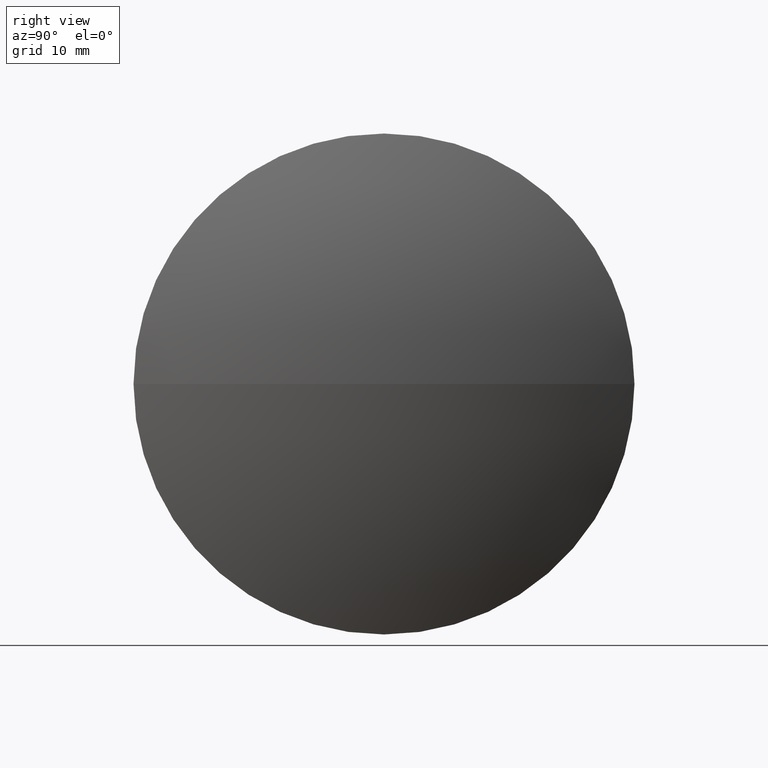
[diagram: clean part render]
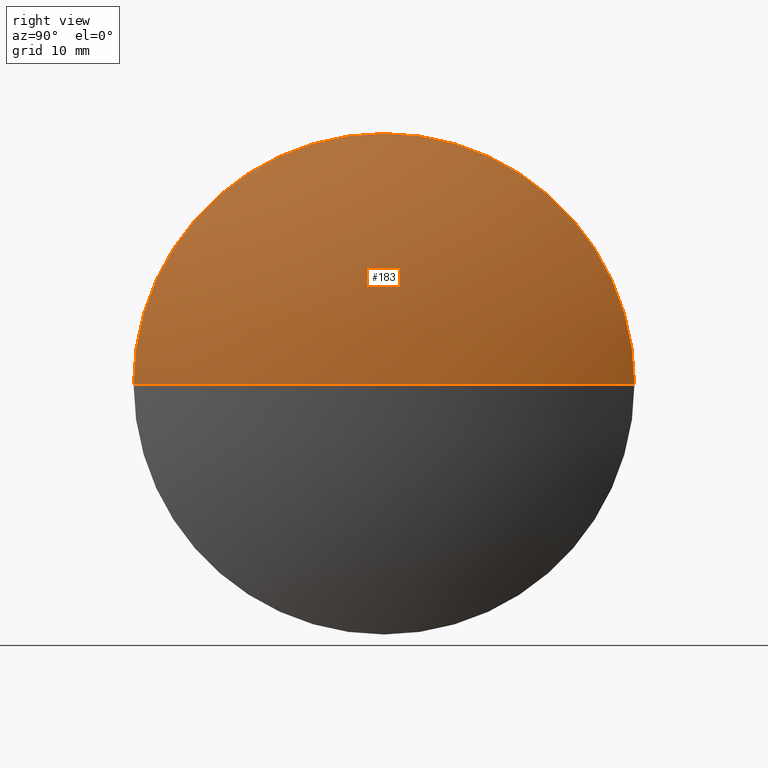
[diagram: same view with one face highlighted and labeled with its STEP entity id]
A machine part, right view. The second image highlights one B-rep face of the part: STEP entity #183.
In plain terms, the highlighted spherical surface has radius 85.9273 mm.
Its self-contained STEP definition (entity closure, byte-faithful):
#3 = FACE_OUTER_BOUND ( 'NONE', #324, .T. ) ;
#8 = DIRECTION ( 'NONE',  ( -1.000000000000000000, -0.0000000000000000000, -0.0000000000000000000 ) ) ;
#11 = EDGE_CURVE ( 'NONE', #267, #221, #209, .T. ) ;
#31 = DIRECTION ( 'NONE',  ( 0.0000000000000000000, 0.0000000000000000000, 1.000000000000000000 ) ) ;
#40 = VERTEX_POINT ( 'NONE', #137 ) ;
#41 = DIRECTION ( 'NONE',  ( -1.000000000000000000, 0.0000000000000000000, 0.0000000000000000000 ) ) ;
#58 = DIRECTION ( 'NONE',  ( 0.0000000000000000000, 0.0000000000000000000, 1.000000000000000000 ) ) ;
#60 = DIRECTION ( 'NONE',  ( 0.0000000000000000000, 0.0000000000000000000, 1.000000000000000000 ) ) ;
#62 = CARTESIAN_POINT ( 'NONE',  ( 243.5206127648180300, 133.9814138434226200, 0.0000000000000000000 ) ) ;
#67 = CARTESIAN_POINT ( 'NONE',  ( 243.5206127648180300, 168.9814138434226400, 4.286263797015734100E-015 ) ) ;
#81 = EDGE_CURVE ( 'NONE', #40, #267, #338, .T. ) ;
#86 = AXIS2_PLACEMENT_3D ( 'NONE', #298, #58, #141 ) ;
#96 = CARTESIAN_POINT ( 'NONE',  ( 250.9718002401569700, 133.9814138434226400, 0.0000000000000000000 ) ) ;
#109 = AXIS2_PLACEMENT_3D ( 'NONE', #300, #148, #223 ) ;
#137 = CARTESIAN_POINT ( 'NONE',  ( 243.5206127648180300, 98.98141384342261500, 0.0000000000000000000 ) ) ;
#141 = DIRECTION ( 'NONE',  ( 0.0000000000000000000, -1.000000000000000000, 0.0000000000000000000 ) ) ;
#147 = ORIENTED_EDGE ( 'NONE', *, *, #81, .F. ) ;
#148 = DIRECTION ( 'NONE',  ( 0.0000000000000000000, -1.224646799147353200E-016, 1.000000000000000000 ) ) ;
#149 = CARTESIAN_POINT ( 'NONE',  ( 243.5206127648180300, 133.9814138434226200, 35.00000000000000000 ) ) ;
#151 = CARTESIAN_POINT ( 'NONE',  ( 165.0445437437425100, 133.9814138434226400, 0.0000000000000000000 ) ) ;
#169 = ORIENTED_EDGE ( 'NONE', *, *, #314, .F. ) ;
#183 = ADVANCED_FACE ( 'NONE', ( #3 ), #271, .T. ) ;
#189 = CIRCLE ( 'NONE', #109, 85.92725649641450000 ) ;
#198 = DIRECTION ( 'NONE',  ( 0.0000000000000000000, 0.0000000000000000000, -1.000000000000000000 ) ) ;
#202 = AXIS2_PLACEMENT_3D ( 'NONE', #62, #8, #31 ) ;
#203 = ORIENTED_EDGE ( 'NONE', *, *, #268, .T. ) ;
#209 = CIRCLE ( 'NONE', #202, 35.00000000000000000 ) ;
#221 = VERTEX_POINT ( 'NONE', #67 ) ;
#223 = DIRECTION ( 'NONE',  ( 0.0000000000000000000, -1.000000000000000000, -1.224646799147353200E-016 ) ) ;
#242 = CIRCLE ( 'NONE', #255, 85.92725649641450000 ) ;
#243 = ORIENTED_EDGE ( 'NONE', *, *, #11, .F. ) ;
#255 = AXIS2_PLACEMENT_3D ( 'NONE', #151, #198, #41 ) ;
#267 = VERTEX_POINT ( 'NONE', #149 ) ;
#268 = EDGE_CURVE ( 'NONE', #272, #221, #189, .T. ) ;
#271 = SPHERICAL_SURFACE ( 'NONE', #86, 85.92725649641450000 ) ;
#272 = VERTEX_POINT ( 'NONE', #96 ) ;
#296 = AXIS2_PLACEMENT_3D ( 'NONE', #297, #325, #60 ) ;
#297 = CARTESIAN_POINT ( 'NONE',  ( 243.5206127648180300, 133.9814138434226200, 0.0000000000000000000 ) ) ;
#298 = CARTESIAN_POINT ( 'NONE',  ( 165.0445437437425100, 133.9814138434226400, 0.0000000000000000000 ) ) ;
#300 = CARTESIAN_POINT ( 'NONE',  ( 165.0445437437425100, 133.9814138434226400, 0.0000000000000000000 ) ) ;
#314 = EDGE_CURVE ( 'NONE', #272, #40, #242, .T. ) ;
#324 = EDGE_LOOP ( 'NONE', ( #169, #203, #243, #147 ) ) ;
#325 = DIRECTION ( 'NONE',  ( -1.000000000000000000, -0.0000000000000000000, -0.0000000000000000000 ) ) ;
#338 = CIRCLE ( 'NONE', #296, 35.00000000000000000 ) ;